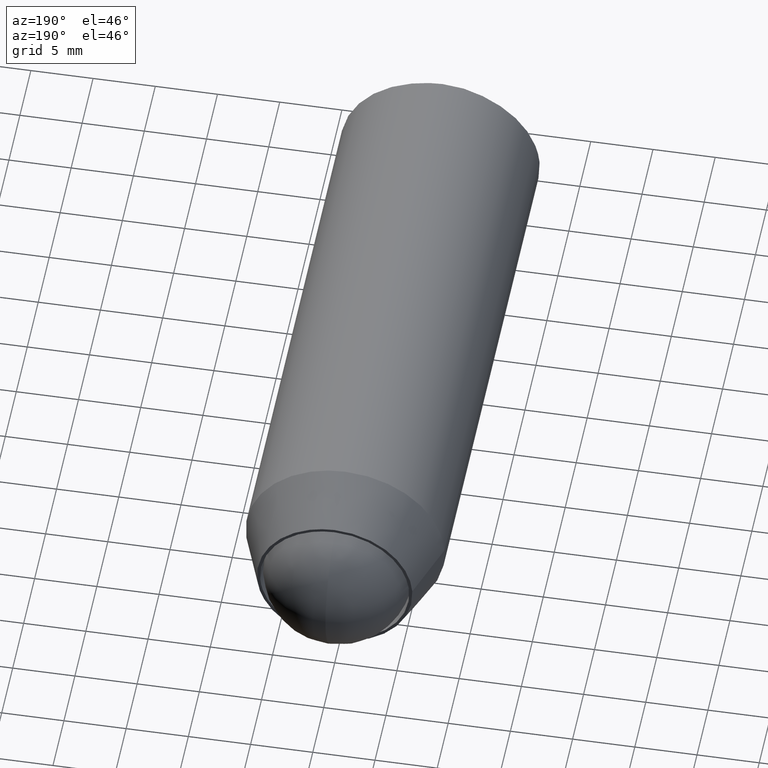
[diagram: clean part render]
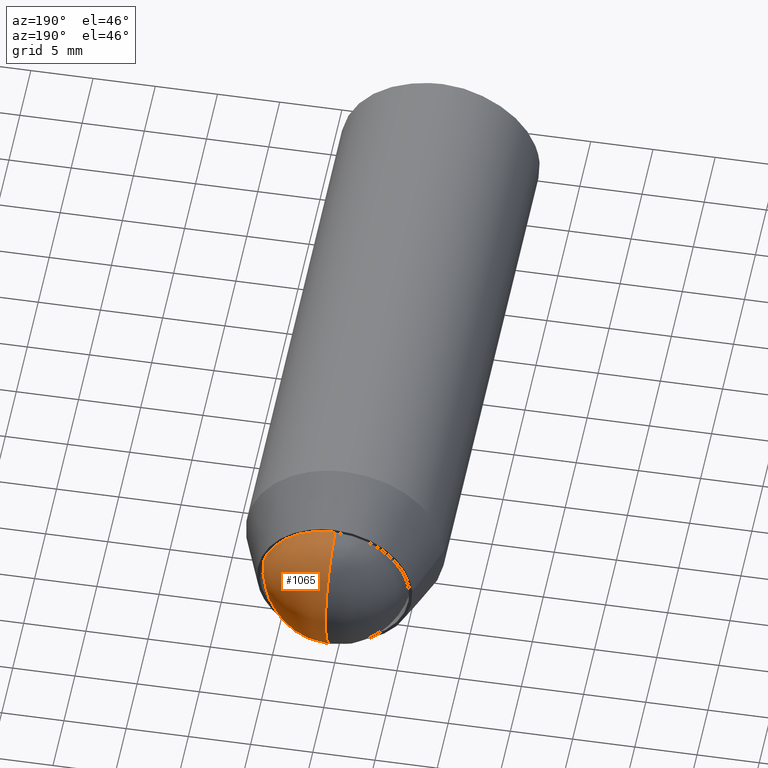
[diagram: same view with one face highlighted and labeled with its STEP entity id]
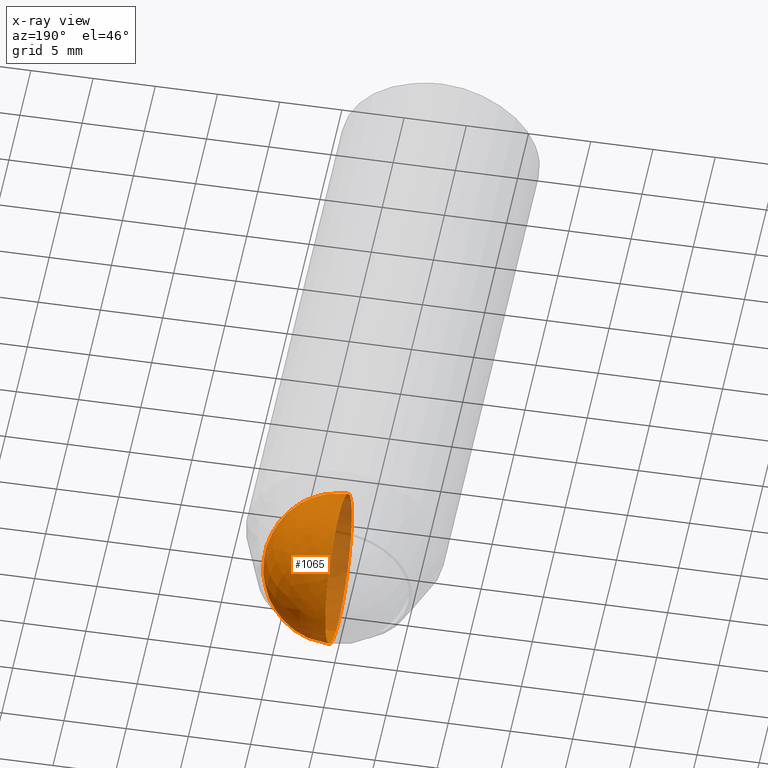
[diagram: x-ray of the same camera — body ghosted, the highlighted face saturated]
A machine part, auxiliary view. The second image highlights one B-rep face of the part: STEP entity #1065.
The next image is the same camera in x-ray: the body ghosted, the highlighted face saturated — about 21% of this face is hidden behind the body in this view.
In plain terms, the highlighted face is a freeform B-spline surface patch.
Its self-contained STEP definition (entity closure, byte-faithful):
#985=CARTESIAN_POINT('',(-2.250000000000000,-5.733033180638068,-3.933033180638066));
#986=CARTESIAN_POINT('',(-1.471698113207548,-5.361992314540136,-4.749323086053514));
#987=CARTESIAN_POINT('',(-0.285714285714286,-3.298298354528788,-5.993193418115148));
#988=CARTESIAN_POINT('',(-0.285714285714286,-0.301701645471213,-5.993193418115148));
#989=CARTESIAN_POINT('',(-1.471698113207548,1.761992314540136,-4.749323086053514));
#990=CARTESIAN_POINT('',(-2.250000000000000,2.133033180638067,-3.933033180638066));
#991=CARTESIAN_POINT('',(-1.471698113207548,-6.549323086053517,-3.561992314540135));
#992=CARTESIAN_POINT('',(-0.285714285714286,-6.294895063586361,-4.494895063586362));
#993=CARTESIAN_POINT('',(1.741935483870967,-3.829952609361583,-6.089857828084748));
#994=CARTESIAN_POINT('',(1.741935483870967,0.229952609361583,-6.089857828084748));
#995=CARTESIAN_POINT('',(-0.285714285714286,2.694895063586363,-4.494895063586362));
#996=CARTESIAN_POINT('',(-1.471698113207548,2.949323086053516,-3.561992314540135));
#997=CARTESIAN_POINT('',(-0.285714285714286,-7.793193418115152,-1.498298354528786));
#998=CARTESIAN_POINT('',(1.741935483870967,-7.889857828084748,-2.029952609361581));
#999=CARTESIAN_POINT('',(5.999999999999998,-4.946426544510453,-3.146426544510452));
#1000=CARTESIAN_POINT('',(5.999999999999998,1.346426544510454,-3.146426544510452));
#1001=CARTESIAN_POINT('',(1.741935483870967,4.289857828084750,-2.029952609361581));
#1002=CARTESIAN_POINT('',(-0.285714285714286,4.193193418115151,-1.498298354528786));
#1003=CARTESIAN_POINT('',(-0.285714285714286,-7.793193418115152,1.498298354528789));
#1004=CARTESIAN_POINT('',(1.741935483870967,-7.889857828084748,2.029952609361584));
#1005=CARTESIAN_POINT('',(5.999999999999998,-4.946426544510453,3.146426544510455));
#1006=CARTESIAN_POINT('',(5.999999999999998,1.346426544510454,3.146426544510455));
#1007=CARTESIAN_POINT('',(1.741935483870967,4.289857828084750,2.029952609361584));
#1008=CARTESIAN_POINT('',(-0.285714285714286,4.193193418115151,1.498298354528789));
#1009=CARTESIAN_POINT('',(-1.471698113207548,-6.549323086053517,3.561992314540138));
#1010=CARTESIAN_POINT('',(-0.285714285714286,-6.294895063586361,4.494895063586363));
#1011=CARTESIAN_POINT('',(1.741935483870967,-3.829952609361583,6.089857828084750));
#1012=CARTESIAN_POINT('',(1.741935483870967,0.229952609361583,6.089857828084750));
#1013=CARTESIAN_POINT('',(-0.285714285714286,2.694895063586363,4.494895063586363));
#1014=CARTESIAN_POINT('',(-1.471698113207548,2.949323086053516,3.561992314540138));
#1015=CARTESIAN_POINT('',(-2.250000000000000,-5.733033180638068,3.933033180638069));
#1016=CARTESIAN_POINT('',(-1.471698113207548,-5.361992314540136,4.749323086053517));
#1017=CARTESIAN_POINT('',(-0.285714285714286,-3.298298354528788,5.993193418115152));
#1018=CARTESIAN_POINT('',(-0.285714285714286,-0.301701645471213,5.993193418115152));
#1019=CARTESIAN_POINT('',(-1.471698113207548,1.761992314540136,4.749323086053517));
#1020=CARTESIAN_POINT('',(-2.250000000000000,2.133033180638067,3.933033180638069));
#1028=(BOUNDED_SURFACE()B_SPLINE_SURFACE(2,2,((#985,#991,#997,#1003,#1009,#1015),(#986,#992,#998,#1004,#1010,#1016),(#987,#993,#999,#1005,#1011,#1017),(#988,#994,#1000,#1006,#1012,#1018),(#989,#995,#1001,#1007,#1013,#1019),(#990,#996,#1002,#1008,#1014,#1020)),.UNSPECIFIED.,.F.,.F.,.U.)B_SPLINE_SURFACE_WITH_KNOTS((3,1,1,1,3),(3,1,1,1,3),(0.0,5.532178539798601,11.064357079597199,16.596535619395802,22.128714159194399),(0.0,5.532178539798601,11.064357079597199,16.596535619395802,22.128714159194399),.UNSPECIFIED.)GEOMETRIC_REPRESENTATION_ITEM()RATIONAL_B_SPLINE_SURFACE(((3.200000000000000,2.650000000000000,2.100000000000000,2.100000000000000,2.650000000000000,3.200000000000000),(2.650000000000000,2.100000000000000,1.550000000000000,1.550000000000000,2.100000000000000,2.650000000000000),(2.100000000000000,1.550000000000000,1.0,1.0,1.550000000000000,2.100000000000000),(2.100000000000000,1.550000000000000,1.0,1.0,1.550000000000000,2.100000000000000),(2.650000000000000,2.100000000000000,1.550000000000000,1.550000000000000,2.100000000000000,2.650000000000000),(3.200000000000000,2.650000000000000,2.100000000000000,2.100000000000000,2.650000000000000,3.200000000000000)))REPRESENTATION_ITEM('')SURFACE());
#1029=CARTESIAN_POINT('',(0.0,4.200000000000000,1.181745E-015));
#1030=VERTEX_POINT('',#1029);
#1031=CARTESIAN_POINT('',(0.0,-7.800000000000000,1.181745E-015));
#1032=VERTEX_POINT('',#1031);
#1033=CARTESIAN_POINT('',(0.0,4.200000000000000,1.181745E-015));
#1034=CARTESIAN_POINT('',(0.0,4.200000000000000,6.0));
#1035=CARTESIAN_POINT('',(0.0,-1.800000000000000,6.000000000000001));
#1036=CARTESIAN_POINT('',(0.0,-7.800000000000001,6.0));
#1037=CARTESIAN_POINT('',(0.0,-7.800000000000000,1.181745E-015));
#1045=(BOUNDED_CURVE()B_SPLINE_CURVE(2,(#1033,#1034,#1035,#1036,#1037),.UNSPECIFIED.,.F.,.U.)B_SPLINE_CURVE_WITH_KNOTS((3,2,3),(0.0,0.500000000000000,1.0),.UNSPECIFIED.)CURVE()GEOMETRIC_REPRESENTATION_ITEM()RATIONAL_B_SPLINE_CURVE((1.0,0.707106781186548,1.0,0.707106781186548,1.0))REPRESENTATION_ITEM(''));
#1046=EDGE_CURVE('',#1030,#1032,#1045,.T.);
#1047=ORIENTED_EDGE('',*,*,#1046,.T.);
#1048=CARTESIAN_POINT('',(0.0,4.200000000000000,1.181745E-015));
#1049=CARTESIAN_POINT('',(0.0,4.200000000000000,-5.999999999999999));
#1050=CARTESIAN_POINT('',(0.0,-1.800000000000000,-5.999999999999999));
#1051=CARTESIAN_POINT('',(0.0,-7.800000000000001,-5.999999999999999));
#1052=CARTESIAN_POINT('',(0.0,-7.800000000000000,1.181745E-015));
#1060=(BOUNDED_CURVE()B_SPLINE_CURVE(2,(#1048,#1049,#1050,#1051,#1052),.UNSPECIFIED.,.F.,.U.)B_SPLINE_CURVE_WITH_KNOTS((3,2,3),(0.0,0.500000000000000,1.0),.UNSPECIFIED.)CURVE()GEOMETRIC_REPRESENTATION_ITEM()RATIONAL_B_SPLINE_CURVE((1.0,0.707106781186548,1.0,0.707106781186548,1.0))REPRESENTATION_ITEM(''));
#1061=EDGE_CURVE('',#1030,#1032,#1060,.T.);
#1062=ORIENTED_EDGE('',*,*,#1061,.F.);
#1063=EDGE_LOOP('',(#1047,#1062));
#1064=FACE_OUTER_BOUND('',#1063,.T.);
#1065=ADVANCED_FACE('',(#1064),#1028,.T.);